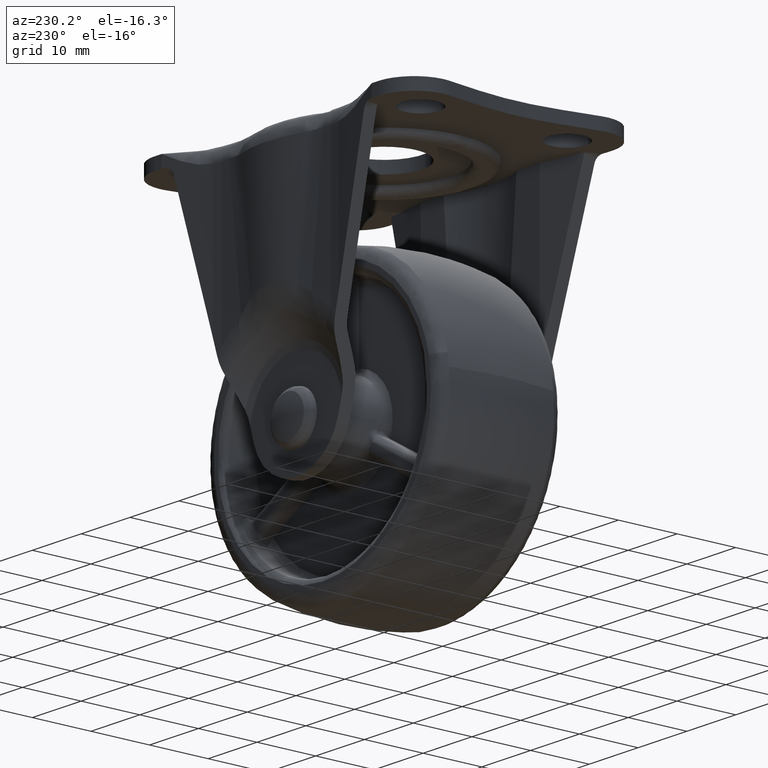
[diagram: clean part render]
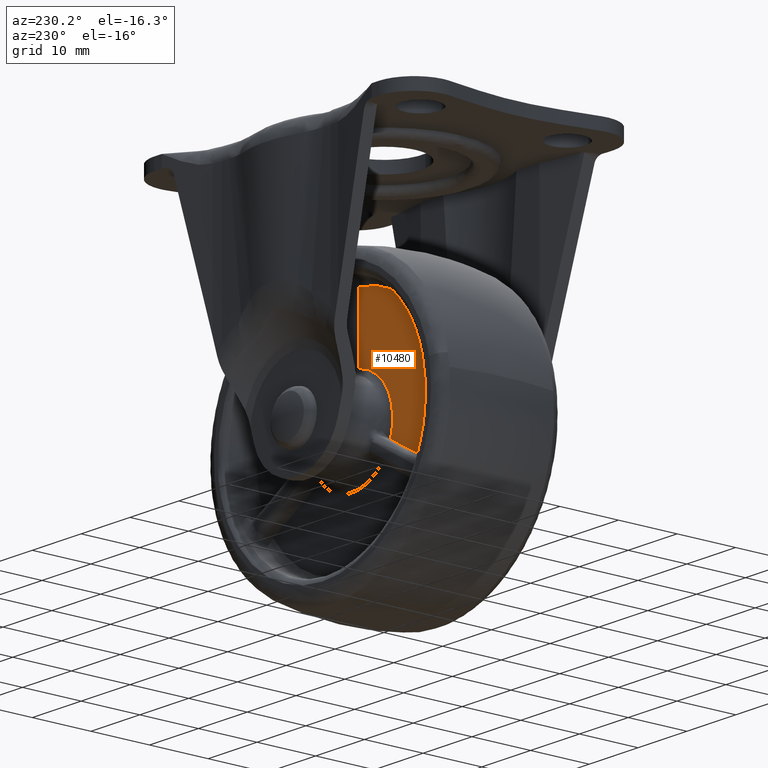
[diagram: same view with one face highlighted and labeled with its STEP entity id]
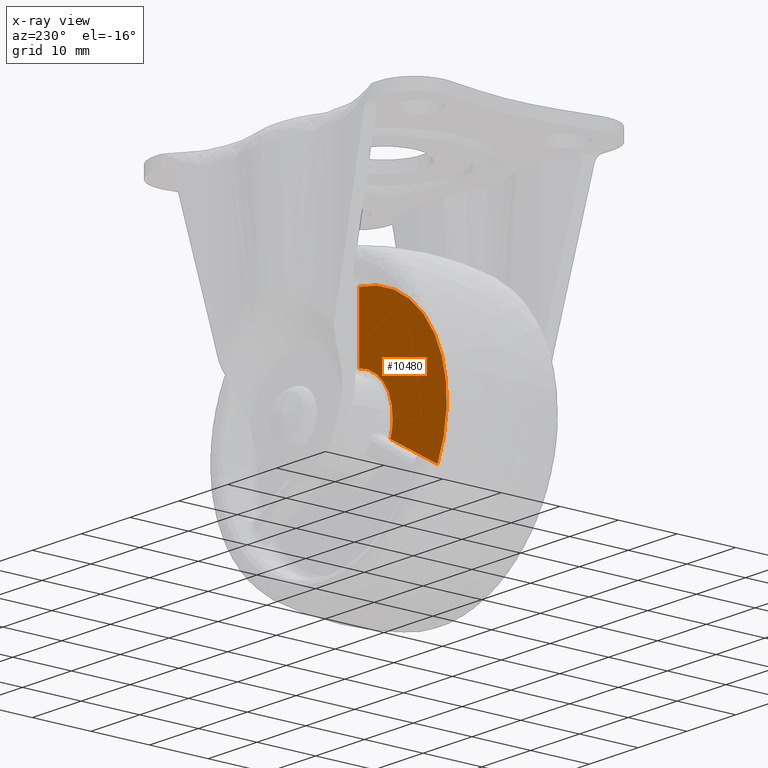
[diagram: x-ray of the same camera — body ghosted, the highlighted face saturated]
A machine part, auxiliary view. The second image highlights one B-rep face of the part: STEP entity #10480.
The next image is the same camera in x-ray: the body ghosted, the highlighted face saturated — about 0% of this face is hidden behind the body in this view.
In plain terms, the highlighted face is a freeform B-spline surface patch.
Its self-contained STEP definition (entity closure, byte-faithful):
#5388=CARTESIAN_POINT('',(-17.454474511868298,5.500000000000000,-8.345289664815891));
#5389=VERTEX_POINT('',#5388);
#5390=CARTESIAN_POINT('',(-17.546333075579000,5.500000000000000,-8.392182940143929));
#5391=VERTEX_POINT('',#5390);
#5392=CARTESIAN_POINT('',(-17.454474511868298,5.500000000000000,-8.345289664815896));
#5393=CARTESIAN_POINT('',(-17.499193090044404,5.500000000000000,-8.371107932532979));
#5394=CARTESIAN_POINT('',(-17.546333075579000,5.500000000000000,-8.392182940143924));
#5402=(BOUNDED_CURVE()B_SPLINE_CURVE(2,(#5392,#5393,#5394),.UNSPECIFIED.,.F.,.U.)CURVE()GEOMETRIC_REPRESENTATION_ITEM()QUASI_UNIFORM_CURVE()RATIONAL_B_SPLINE_CURVE((1.0,0.998669493000815,1.0))REPRESENTATION_ITEM(''));
#5403=EDGE_CURVE('',#5389,#5391,#5402,.T.);
#5950=CARTESIAN_POINT('',(-1.505313881096850,5.500000000000000,19.391662358327551));
#5951=VERTEX_POINT('',#5950);
#6003=CARTESIAN_POINT('',(-1.499995414943830,5.500000000000000,19.288663814875701));
#6004=VERTEX_POINT('',#6003);
#6010=CARTESIAN_POINT('',(-1.505313881096859,5.500000000000000,19.391662358327551));
#6011=CARTESIAN_POINT('',(-1.499995401475675,5.500000000000001,19.340300400317588));
#6012=CARTESIAN_POINT('',(-1.499995414943834,5.500000000000000,19.288663814875701));
#6020=(BOUNDED_CURVE()B_SPLINE_CURVE(2,(#6010,#6011,#6012),.UNSPECIFIED.,.F.,.U.)CURVE()GEOMETRIC_REPRESENTATION_ITEM()QUASI_UNIFORM_CURVE()RATIONAL_B_SPLINE_CURVE((1.0,0.998669491619296,1.0))REPRESENTATION_ITEM(''));
#6021=EDGE_CURVE('',#5951,#6004,#6020,.T.);
#9543=CARTESIAN_POINT('',(-7.896625694701490,5.500000000000000,-2.827066375398330));
#9544=VERTEX_POINT('',#9543);
#9555=CARTESIAN_POINT('',(-17.454474511868298,5.500000000000000,-8.345289664815891));
#9556=CARTESIAN_POINT('',(-7.896625694701490,5.500000000000000,-2.827066375398330));
#9557=QUASI_UNIFORM_CURVE('',1,(#9555,#9556),.UNSPECIFIED.,.F.,.U.);
#9558=EDGE_CURVE('',#5389,#9544,#9557,.T.);
#9695=CARTESIAN_POINT('',(-1.499998293535846,5.500000000000000,8.252212235062620));
#9696=VERTEX_POINT('',#9695);
#9705=CARTESIAN_POINT('',(-1.499998293535846,5.500000000000000,8.252212235062620));
#9706=CARTESIAN_POINT('',(-1.499995414943830,5.500000000000000,19.288663814875701));
#9707=QUASI_UNIFORM_CURVE('',1,(#9705,#9706),.UNSPECIFIED.,.F.,.U.);
#9708=EDGE_CURVE('',#9696,#6004,#9707,.T.);
#10394=CARTESIAN_POINT('',(-1.499998293535844,5.500000000000000,8.252212235062622));
#10395=CARTESIAN_POINT('',(-5.321610715098605,5.500000000000000,7.557560674049294));
#10396=CARTESIAN_POINT('',(-7.263727639864653,5.500000000000000,4.193717017991788));
#10397=CARTESIAN_POINT('',(-9.205844564630697,5.500000000000000,0.829873361934285));
#10398=CARTESIAN_POINT('',(-7.896625694701490,5.500000000000000,-2.827066375398328));
#10406=(BOUNDED_CURVE()B_SPLINE_CURVE(2,(#10394,#10395,#10396,#10397,#10398),.UNSPECIFIED.,.F.,.U.)B_SPLINE_CURVE_WITH_KNOTS((3,2,3),(0.0,0.500000000000000,1.0),.UNSPECIFIED.)CURVE()GEOMETRIC_REPRESENTATION_ITEM()RATIONAL_B_SPLINE_CURVE((1.0,0.907418950703165,1.0,0.907418950703165,1.0))REPRESENTATION_ITEM(''));
#10407=EDGE_CURVE('',#9696,#9544,#10406,.T.);
#10453=CARTESIAN_POINT('',(-20.346185015074379,5.500000000000000,-9.779986480581815));
#10454=CARTESIAN_POINT('',(-20.346185015074379,5.500000000000000,20.779466147172371));
#10455=CARTESIAN_POINT('',(-0.603412110159089,5.500000000000000,-9.779986480581815));
#10456=CARTESIAN_POINT('',(-0.603412110159089,5.500000000000000,20.779466147172371));
#10457=B_SPLINE_SURFACE_WITH_KNOTS('',1,1,((#10453,#10455),(#10454,#10456)),.UNSPECIFIED.,.F.,.F.,.U.,(2,2),(2,2),(0.0,30.559452627754190),(0.0,19.742772904915292),.UNSPECIFIED.);
#10458=CARTESIAN_POINT('',(-1.505313881096847,5.500000000000000,19.391662358327569));
#10459=CARTESIAN_POINT('',(-11.720987305957015,5.500000000000000,18.598651695959550));
#10460=CARTESIAN_POINT('',(-16.844192703504781,5.500000000000000,9.725004425047713));
#10461=CARTESIAN_POINT('',(-21.967398101052527,5.500000000000000,0.851357154135876));
#10462=CARTESIAN_POINT('',(-17.546333075579021,5.500000000000000,-8.392182940143929));
#10470=(BOUNDED_CURVE()B_SPLINE_CURVE(2,(#10458,#10459,#10460,#10461,#10462),.UNSPECIFIED.,.F.,.U.)B_SPLINE_CURVE_WITH_KNOTS((3,2,3),(0.0,0.500000000000000,1.0),.UNSPECIFIED.)CURVE()GEOMETRIC_REPRESENTATION_ITEM()RATIONAL_B_SPLINE_CURVE((1.0,0.884738853213935,1.0,0.884738853213935,1.0))REPRESENTATION_ITEM(''));
#10471=EDGE_CURVE('',#5951,#5391,#10470,.T.);
#10472=ORIENTED_EDGE('',*,*,#10471,.F.);
#10473=ORIENTED_EDGE('',*,*,#6021,.T.);
#10474=ORIENTED_EDGE('',*,*,#9708,.F.);
#10475=ORIENTED_EDGE('',*,*,#10407,.T.);
#10476=ORIENTED_EDGE('',*,*,#9558,.F.);
#10477=ORIENTED_EDGE('',*,*,#5403,.T.);
#10478=EDGE_LOOP('',(#10472,#10473,#10474,#10475,#10476,#10477));
#10479=FACE_OUTER_BOUND('',#10478,.T.);
#10480=ADVANCED_FACE('',(#10479),#10457,.T.);